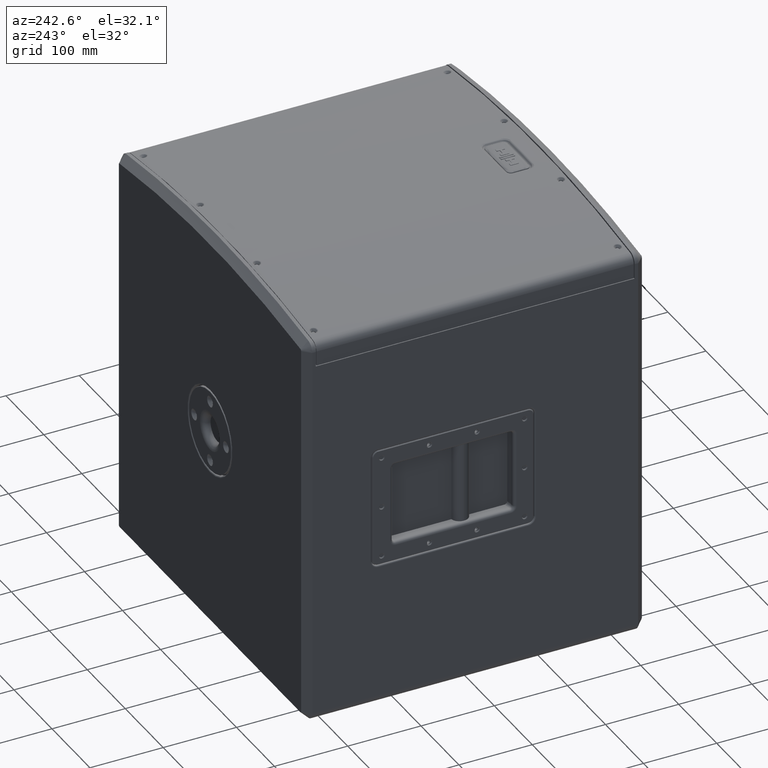
[diagram: clean part render]
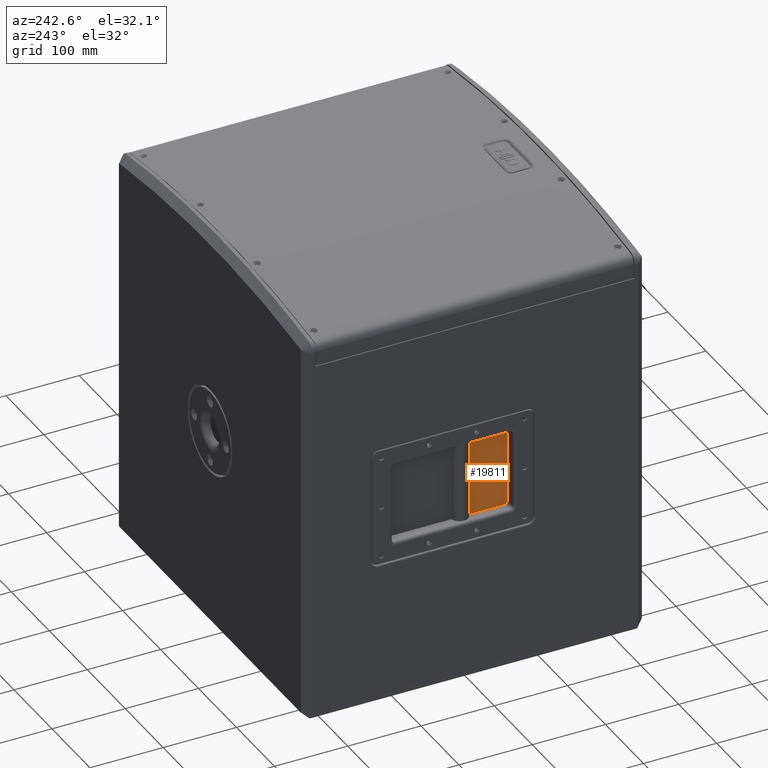
[diagram: same view with one face highlighted and labeled with its STEP entity id]
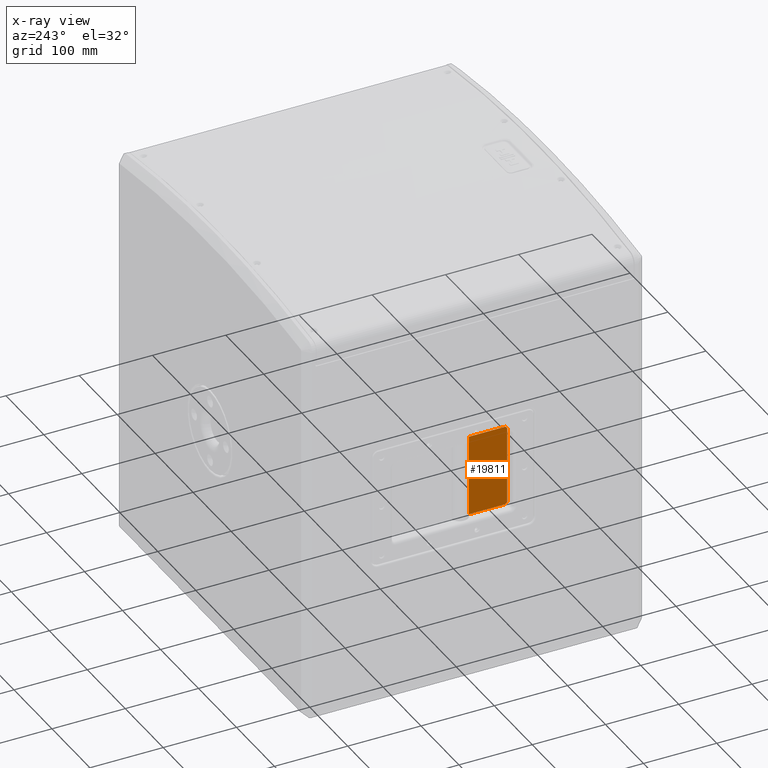
[diagram: x-ray of the same camera — body ghosted, the highlighted face saturated]
A machine part, auxiliary view. The second image highlights one B-rep face of the part: STEP entity #19811.
The next image is the same camera in x-ray: the body ghosted, the highlighted face saturated — about 0% of this face is hidden behind the body in this view.
In plain terms, the highlighted planar face has unit normal (1, 0, -0).
Its self-contained STEP definition (entity closure, byte-faithful):
#710 = CARTESIAN_POINT ( 'NONE',  ( -235.0000000000000853, 217.5000000000000284, 55.49999999999999289 ) ) ;
#1999 = PLANE ( 'NONE',  #24616 ) ;
#2126 = EDGE_CURVE ( 'NONE', #14152, #14058, #32272, .T. ) ;
#2338 = CARTESIAN_POINT ( 'NONE',  ( -235.0000000000000284, -47.29011672586547377, -55.49999999999999289 ) ) ;
#2456 = DIRECTION ( 'NONE',  ( -0.0000000000000000000, 0.0000000000000000000, 1.000000000000000000 ) ) ;
#2903 = EDGE_CURVE ( 'NONE', #14152, #27843, #34853, .T. ) ;
#3857 = CARTESIAN_POINT ( 'NONE',  ( -235.0000000000000568, 1.167840433800811040, -55.49999999999999289 ) ) ;
#3896 = DIRECTION ( 'NONE',  ( 1.914177628664062882E-16, -1.000000000000000000, 0.0000000000000000000 ) ) ;
#4529 = CARTESIAN_POINT ( 'NONE',  ( -235.0000000000000284, -50.37904798294936626, 54.16988290296339414 ) ) ;
#4585 = EDGE_LOOP ( 'NONE', ( #18439, #14199, #32670, #29142, #29210, #37738 ) ) ;
#4726 = CARTESIAN_POINT ( 'NONE',  ( -235.0000000000000284, -51.20111152219215001, 52.81271935147332641 ) ) ;
#4949 = CARTESIAN_POINT ( 'NONE',  ( -235.0000000000000284, -50.85751437403617814, 53.53424613738300053 ) ) ;
#5365 = CARTESIAN_POINT ( 'NONE',  ( -235.0000000000000284, -50.98986693974016049, 53.29845185288195353 ) ) ;
#5635 = CARTESIAN_POINT ( 'NONE',  ( -235.0000000000000568, 1.167840433800811040, 89.44112549695427106 ) ) ;
#5997 = VERTEX_POINT ( 'NONE', #23270 ) ;
#6689 = EDGE_CURVE ( 'NONE', #20884, #33769, #37015, .T. ) ;
#7535 = LINE ( 'NONE', #710, #23647 ) ;
#8145 = LINE ( 'NONE', #14975, #9967 ) ;
#9561 = CARTESIAN_POINT ( 'NONE',  ( -235.0000000000000284, -51.28444683741692955, -52.55084173808836567 ) ) ;
#9775 = CARTESIAN_POINT ( 'NONE',  ( -235.0000000000000284, -49.09924409751700125, -55.10620098718472804 ) ) ;
#9967 = VECTOR ( 'NONE', #34132, 1000.000000000000000 ) ;
#11153 = CARTESIAN_POINT ( 'NONE',  ( -234.9999999999988916, -47.55852544542579352, 55.50000000000000000 ) ) ;
#11796 = CARTESIAN_POINT ( 'NONE',  ( -235.0000000000000284, -51.28203044465931271, 52.56028144595386919 ) ) ;
#12366 = CARTESIAN_POINT ( 'NONE',  ( -235.0000000000000853, -47.82361568269499941, -55.47504588379315749 ) ) ;
#12990 = CARTESIAN_POINT ( 'NONE',  ( -235.0000000000000284, -50.38054524146329527, -54.16818526822343927 ) ) ;
#14058 = VERTEX_POINT ( 'NONE', #41590 ) ;
#14152 = VERTEX_POINT ( 'NONE', #3857 ) ;
#14199 = ORIENTED_EDGE ( 'NONE', *, *, #6689, .F. ) ;
#14366 = CARTESIAN_POINT ( 'NONE',  ( -235.0000000000000284, -49.33374303509865655, 54.98699823153503274 ) ) ;
#14975 = CARTESIAN_POINT ( 'NONE',  ( -235.0000000000003126, -51.41983116217075889, 0.0000000000000000000 ) ) ;
#14990 = CARTESIAN_POINT ( 'NONE',  ( -235.0000000000000284, -47.29011672586553061, 55.49999999999999289 ) ) ;
#15369 = CARTESIAN_POINT ( 'NONE',  ( -235.0000000000000284, -50.55659897105300615, -53.96371575097131768 ) ) ;
#15451 = CARTESIAN_POINT ( 'NONE',  ( -235.0000000000000853, 217.5000000000000284, 280.0000000000000568 ) ) ;
#15793 = CARTESIAN_POINT ( 'NONE',  ( -235.0000000000183036, -51.41983116217518557, -51.76850849919856046 ) ) ;
#15880 = DIRECTION ( 'NONE',  ( -1.914177628664062882E-16, 1.000000000000000000, 0.0000000000000000000 ) ) ;
#16216 = CARTESIAN_POINT ( 'NONE',  ( -235.0000000000000284, -50.86166619508441755, -53.52741820748530444 ) ) ;
#16328 = CARTESIAN_POINT ( 'NONE',  ( -235.0000000000000853, 217.5000000000000284, -55.49999999999999289 ) ) ;
#17136 = DIRECTION ( 'NONE',  ( 1.914177628664062882E-16, -1.000000000000000000, 0.0000000000000000000 ) ) ;
#18439 = ORIENTED_EDGE ( 'NONE', *, *, #20899, .F. ) ;
#18662 = EDGE_CURVE ( 'NONE', #5997, #14058, #19626, .T. ) ;
#19199 = CARTESIAN_POINT ( 'NONE',  ( -235.0000000000000284, -49.99724576557908762, -54.53391115313028337 ) ) ;
#19405 = CARTESIAN_POINT ( 'NONE',  ( -235.0000000000000284, -48.34801456257464736, -55.37568321149657891 ) ) ;
#19626 = B_SPLINE_CURVE_WITH_KNOTS ( 'NONE', 3,
 ( #41522, #15793, #22154, #9561, #28975, #31740, #16216, #15369, #12990, #19199, #38967, #32162, #9775, #22384, #19405, #12366, #22802, #2338 ),
 .UNSPECIFIED., .F., .F.,
 ( 4, 2, 2, 2, 2, 2, 2, 2, 4 ),
 ( 0.0000000000000000000, 0.0007939599493392747323, 0.001587919898678549465, 0.002381879848017824305, 0.003175839797357098929, 0.003969799746696373553, 0.004763759696035648611, 0.005557719645374922801, 0.006351679594714197859 ),
 .UNSPECIFIED. ) ;
#19811 = ADVANCED_FACE ( 'NONE', ( #31194 ), #1999, .F. ) ;
#20884 = VERTEX_POINT ( 'NONE', #24551 ) ;
#20899 = EDGE_CURVE ( 'NONE', #33769, #5997, #8145, .T. ) ;
#20947 = CARTESIAN_POINT ( 'NONE',  ( -235.0000000000000284, -48.34294008490319783, 55.37683605844640766 ) ) ;
#21410 = CARTESIAN_POINT ( 'NONE',  ( -235.0000000000000284, -51.41983116217069494, 51.50000000000002132 ) ) ;
#22154 = CARTESIAN_POINT ( 'NONE',  ( -235.0000000000000284, -51.39227119819702239, -52.03229578849602177 ) ) ;
#22384 = CARTESIAN_POINT ( 'NONE',  ( -235.0000000000000284, -48.60657232847491116, -55.30081670496380752 ) ) ;
#22802 = CARTESIAN_POINT ( 'NONE',  ( -235.0000000000000568, -47.55839213349134553, -55.49999999999965183 ) ) ;
#23270 = CARTESIAN_POINT ( 'NONE',  ( -235.0000000000183320, -51.41983116217518557, -51.49999999999999289 ) ) ;
#23647 = VECTOR ( 'NONE', #17136, 1000.000000000000000 ) ;
#24157 = CARTESIAN_POINT ( 'NONE',  ( -235.0000000000000853, -47.82271373773939871, 55.47502323354174791 ) ) ;
#24362 = CARTESIAN_POINT ( 'NONE',  ( -235.0000000000000284, -49.78106181220604753, 54.70278341401544253 ) ) ;
#24551 = CARTESIAN_POINT ( 'NONE',  ( -235.0000000000000284, -47.29011672586553061, 55.49999999999999289 ) ) ;
#24616 = AXIS2_PLACEMENT_3D ( 'NONE', #15451, #28198, #15880 ) ;
#26033 = EDGE_CURVE ( 'NONE', #27843, #20884, #7535, .T. ) ;
#27329 = CARTESIAN_POINT ( 'NONE',  ( -235.0000000000000284, -48.60130504155212350, 55.30265005888148977 ) ) ;
#27843 = VERTEX_POINT ( 'NONE', #39960 ) ;
#27899 = VECTOR ( 'NONE', #2456, 1000.000000000000000 ) ;
#28198 = DIRECTION ( 'NONE',  ( 1.000000000000000000, 1.914177628664062882E-16, -0.0000000000000000000 ) ) ;
#28975 = CARTESIAN_POINT ( 'NONE',  ( -235.0000000000000284, -51.20273285059376889, -52.80840031151126368 ) ) ;
#29142 = ORIENTED_EDGE ( 'NONE', *, *, #2903, .F. ) ;
#29210 = ORIENTED_EDGE ( 'NONE', *, *, #2126, .T. ) ;
#30963 = CARTESIAN_POINT ( 'NONE',  ( -235.0000000000000568, -51.41983116217070915, 51.76867004757844626 ) ) ;
#31194 = FACE_OUTER_BOUND ( 'NONE', #4585, .T. ) ;
#31740 = CARTESIAN_POINT ( 'NONE',  ( -235.0000000000000284, -50.99100540550072225, -53.29641741954588952 ) ) ;
#32162 = CARTESIAN_POINT ( 'NONE',  ( -235.0000000000000284, -49.33577032341318613, -54.98611947653206045 ) ) ;
#32272 = LINE ( 'NONE', #16328, #41232 ) ;
#32670 = ORIENTED_EDGE ( 'NONE', *, *, #26033, .F. ) ;
#33769 = VERTEX_POINT ( 'NONE', #21410 ) ;
#33949 = CARTESIAN_POINT ( 'NONE',  ( -235.0000000000000853, -51.39208108176671885, 52.03533997982162873 ) ) ;
#34132 = DIRECTION ( 'NONE',  ( -0.0000000000000000000, -0.0000000000000000000, -1.000000000000000000 ) ) ;
#34853 = LINE ( 'NONE', #5635, #27899 ) ;
#36929 = CARTESIAN_POINT ( 'NONE',  ( -235.0000000000000284, -50.55183671557742997, 53.96961007330305904 ) ) ;
#37015 = B_SPLINE_CURVE_WITH_KNOTS ( 'NONE', 3,
 ( #14990, #11153, #24157, #20947, #27329, #40533, #14366, #24362, #37545, #4529, #36929, #4949, #5365, #4726, #11796, #33949, #30963, #40743 ),
 .UNSPECIFIED., .F., .F.,
 ( 4, 2, 2, 2, 2, 2, 2, 2, 4 ),
 ( 2.954535068828113582E-16, 0.0007939711000164161340, 0.001587942200032536931, 0.002381913300048657620, 0.003175884400064778092, 0.003969855500080898998, 0.004763826600097020338, 0.005557797700113140810, 0.006351768800129261282 ),
 .UNSPECIFIED. ) ;
#37545 = CARTESIAN_POINT ( 'NONE',  ( -235.0000000000000284, -49.99441117574866666, 54.53634371123400371 ) ) ;
#37738 = ORIENTED_EDGE ( 'NONE', *, *, #18662, .F. ) ;
#38967 = CARTESIAN_POINT ( 'NONE',  ( -235.0000000000000284, -49.78811572150778630, -54.69788391284894402 ) ) ;
#39960 = CARTESIAN_POINT ( 'NONE',  ( -235.0000000000000568, 1.167840433800811040, 55.50000000000000000 ) ) ;
#40533 = CARTESIAN_POINT ( 'NONE',  ( -235.0000000000000284, -49.09781316922421723, 55.10701025430198996 ) ) ;
#40743 = CARTESIAN_POINT ( 'NONE',  ( -235.0000000000000284, -51.41983116217069494, 51.50000000000002132 ) ) ;
#41232 = VECTOR ( 'NONE', #3896, 1000.000000000000000 ) ;
#41522 = CARTESIAN_POINT ( 'NONE',  ( -235.0000000000183320, -51.41983116217518557, -51.49999999999999289 ) ) ;
#41590 = CARTESIAN_POINT ( 'NONE',  ( -235.0000000000000284, -47.29011672586547377, -55.49999999999999289 ) ) ;